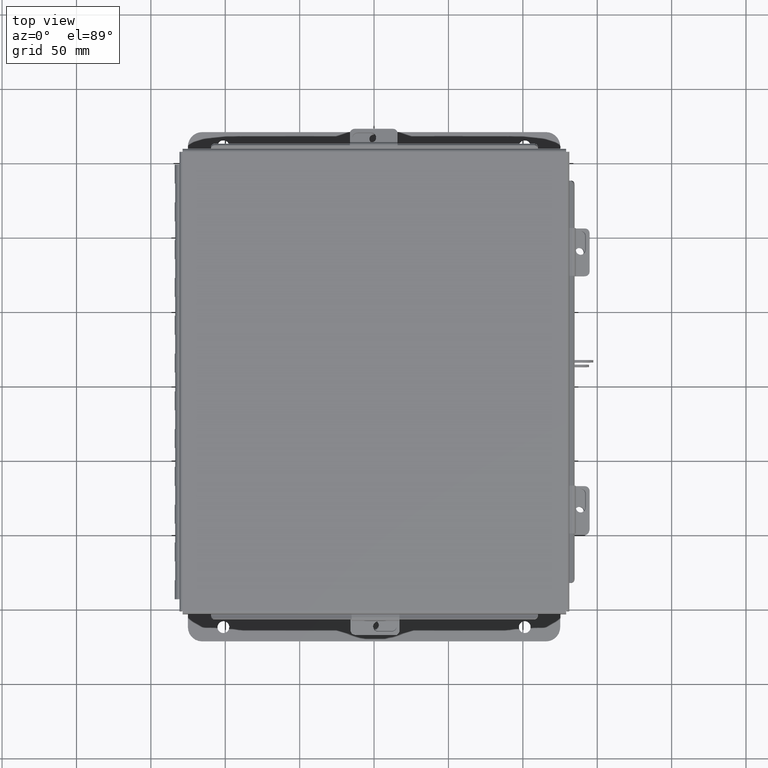
[diagram: clean part render]
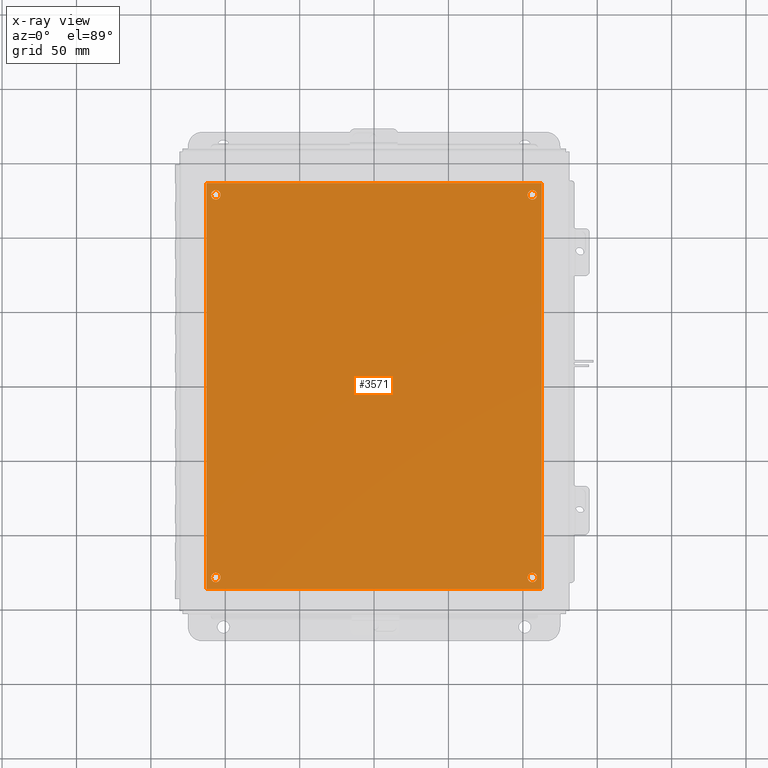
[diagram: x-ray — body ghosted, one internal face saturated and labeled with its STEP entity id]
A machine part, top view, then the same camera in x-ray: the body is ghosted and one INTERNAL B-rep face — a face not visible from any outside direction — is saturated and labeled: STEP entity #3571.
In plain terms, the highlighted planar face has unit normal (0, 0, -1).
Its self-contained STEP definition (entity closure, byte-faithful):
#255 = CARTESIAN_POINT ( 'NONE',  ( 0.0000000000000000000, 0.0000000000000000000, -0.07470000000000003000 ) ) ;
#257 = AXIS2_PLACEMENT_3D ( 'NONE', #13267, #10699, #8166 ) ;
#391 = CARTESIAN_POINT ( 'NONE',  ( 0.3749999999999998300, 10.43799999999999900, -0.07470000000000003000 ) ) ;
#619 = DIRECTION ( 'NONE',  ( -1.000000000000000000, 0.0000000000000000000, -0.0000000000000000000 ) ) ;
#928 = ORIENTED_EDGE ( 'NONE', *, *, #6595, .T. ) ;
#1158 = DIRECTION ( 'NONE',  ( -0.0000000000000000000, -1.000000000000000000, -0.0000000000000000000 ) ) ;
#1732 = VERTEX_POINT ( 'NONE', #14756 ) ;
#1788 = EDGE_CURVE ( 'NONE', #14668, #16118, #2893, .T. ) ;
#1884 = ORIENTED_EDGE ( 'NONE', *, *, #1788, .T. ) ;
#1937 = VERTEX_POINT ( 'NONE', #12248 ) ;
#1981 = CARTESIAN_POINT ( 'NONE',  ( 8.625000000000000000, 10.43799999999999900, -0.07470000000000003000 ) ) ;
#1984 = VECTOR ( 'NONE', #6371, 39.37007874015748100 ) ;
#2075 = DIRECTION ( 'NONE',  ( -0.0000000000000000000, -0.0000000000000000000, 1.000000000000000000 ) ) ;
#2090 = CARTESIAN_POINT ( 'NONE',  ( 0.3750000000000020000, 0.3120000000000015000, -0.07470000000000003000 ) ) ;
#2154 = CIRCLE ( 'NONE', #16639, 0.1250000000000004400 ) ;
#2182 = DIRECTION ( 'NONE',  ( 1.000000000000000000, 0.0000000000000000000, 0.0000000000000000000 ) ) ;
#2587 = ORIENTED_EDGE ( 'NONE', *, *, #5537, .T. ) ;
#2614 = VERTEX_POINT ( 'NONE', #8957 ) ;
#2845 = ORIENTED_EDGE ( 'NONE', *, *, #8380, .T. ) ;
#2893 = CIRCLE ( 'NONE', #7512, 0.1250000000000000600 ) ;
#2960 = EDGE_CURVE ( 'NONE', #16834, #1937, #5635, .T. ) ;
#3043 = AXIS2_PLACEMENT_3D ( 'NONE', #15840, #7683, #17211 ) ;
#3109 = CARTESIAN_POINT ( 'NONE',  ( 0.0000000000000000000, 0.0000000000000000000, -0.07470000000000003000 ) ) ;
#3155 = CARTESIAN_POINT ( 'NONE',  ( 0.0000000000000000000, 0.0000000000000000000, -0.07470000000000003000 ) ) ;
#3447 = FACE_BOUND ( 'NONE', #9397, .T. ) ;
#3519 = ORIENTED_EDGE ( 'NONE', *, *, #3618, .T. ) ;
#3571 = ADVANCED_FACE ( 'NONE', ( #14305, #3447, #14742, #7486, #17532 ), #9511, .T. ) ;
#3618 = EDGE_CURVE ( 'NONE', #1732, #17057, #9845, .T. ) ;
#3674 = CARTESIAN_POINT ( 'NONE',  ( 0.2499999999999998100, 10.43799999999999900, -0.07470000000000003000 ) ) ;
#3744 = DIRECTION ( 'NONE',  ( -0.0000000000000000000, -0.0000000000000000000, 1.000000000000000000 ) ) ;
#4056 = ORIENTED_EDGE ( 'NONE', *, *, #4977, .F. ) ;
#4065 = CARTESIAN_POINT ( 'NONE',  ( 8.750000000000000000, 10.43799999999999900, -0.07470000000000003000 ) ) ;
#4205 = EDGE_CURVE ( 'NONE', #17057, #1732, #13442, .T. ) ;
#4299 = CARTESIAN_POINT ( 'NONE',  ( 0.0000000000000000000, 10.75000000000000200, -0.07470000000000003000 ) ) ;
#4387 = DIRECTION ( 'NONE',  ( -1.000000000000000000, 0.0000000000000000000, 0.0000000000000000000 ) ) ;
#4404 = VERTEX_POINT ( 'NONE', #9048 ) ;
#4671 = EDGE_CURVE ( 'NONE', #1937, #6094, #10221, .T. ) ;
#4916 = DIRECTION ( 'NONE',  ( 0.0000000000000000000, 1.000000000000000000, 0.0000000000000000000 ) ) ;
#4977 = EDGE_CURVE ( 'NONE', #4404, #16834, #16841, .T. ) ;
#5025 = CARTESIAN_POINT ( 'NONE',  ( 0.1250000000000019200, 0.3120000000000015000, -0.07470000000000003000 ) ) ;
#5184 = EDGE_CURVE ( 'NONE', #2614, #7881, #14245, .T. ) ;
#5537 = EDGE_CURVE ( 'NONE', #16118, #14668, #5946, .T. ) ;
#5543 = DIRECTION ( 'NONE',  ( -1.000000000000000000, 0.0000000000000000000, 0.0000000000000000000 ) ) ;
#5560 = EDGE_LOOP ( 'NONE', ( #8928, #3519 ) ) ;
#5635 = LINE ( 'NONE', #4299, #1984 ) ;
#5771 = DIRECTION ( 'NONE',  ( -0.0000000000000000000, -0.0000000000000000000, 1.000000000000000000 ) ) ;
#5848 = CARTESIAN_POINT ( 'NONE',  ( 0.2499999999999998100, 10.43799999999999900, -0.07470000000000003000 ) ) ;
#5946 = CIRCLE ( 'NONE', #257, 0.1250000000000000600 ) ;
#6094 = VERTEX_POINT ( 'NONE', #3109 ) ;
#6371 = DIRECTION ( 'NONE',  ( -1.000000000000000000, -0.0000000000000000000, -0.0000000000000000000 ) ) ;
#6468 = CARTESIAN_POINT ( 'NONE',  ( 8.500000000000000000, 10.43799999999999900, -0.07470000000000003000 ) ) ;
#6510 = EDGE_CURVE ( 'NONE', #6094, #4404, #10245, .T. ) ;
#6595 = EDGE_CURVE ( 'NONE', #13315, #9513, #2154, .T. ) ;
#6601 = DIRECTION ( 'NONE',  ( 0.0000000000000000000, 0.0000000000000000000, -1.000000000000000000 ) ) ;
#6610 = VECTOR ( 'NONE', #1158, 39.37007874015748100 ) ;
#7486 = FACE_BOUND ( 'NONE', #5560, .T. ) ;
#7512 = AXIS2_PLACEMENT_3D ( 'NONE', #12940, #13023, #5543 ) ;
#7683 = DIRECTION ( 'NONE',  ( -0.0000000000000000000, -0.0000000000000000000, 1.000000000000000000 ) ) ;
#7881 = VERTEX_POINT ( 'NONE', #15176 ) ;
#8044 = CIRCLE ( 'NONE', #3043, 0.1250000000000004400 ) ;
#8166 = DIRECTION ( 'NONE',  ( -1.000000000000000000, 0.0000000000000000000, 0.0000000000000000000 ) ) ;
#8314 = CARTESIAN_POINT ( 'NONE',  ( 8.625000000000001800, 0.3120000000000036600, -0.07470000000000003000 ) ) ;
#8315 = CARTESIAN_POINT ( 'NONE',  ( 8.875000000000000000, 0.0000000000000000000, -0.07470000000000003000 ) ) ;
#8380 = EDGE_CURVE ( 'NONE', #9513, #13315, #9594, .T. ) ;
#8928 = ORIENTED_EDGE ( 'NONE', *, *, #4205, .T. ) ;
#8957 = CARTESIAN_POINT ( 'NONE',  ( 8.750000000000001800, 0.3120000000000036600, -0.07470000000000003000 ) ) ;
#9048 = CARTESIAN_POINT ( 'NONE',  ( 8.875000000000000000, 0.0000000000000000000, -0.07470000000000003000 ) ) ;
#9397 = EDGE_LOOP ( 'NONE', ( #10545, #15470 ) ) ;
#9511 = PLANE ( 'NONE',  #12780 ) ;
#9513 = VERTEX_POINT ( 'NONE', #4065 ) ;
#9594 = CIRCLE ( 'NONE', #16431, 0.1250000000000004400 ) ;
#9845 = CIRCLE ( 'NONE', #13720, 0.1250000000000000000 ) ;
#9976 = ORIENTED_EDGE ( 'NONE', *, *, #2960, .F. ) ;
#10077 = DIRECTION ( 'NONE',  ( -1.000000000000000000, 0.0000000000000000000, 0.0000000000000000000 ) ) ;
#10221 = LINE ( 'NONE', #15745, #6610 ) ;
#10245 = LINE ( 'NONE', #3155, #14288 ) ;
#10545 = ORIENTED_EDGE ( 'NONE', *, *, #5184, .T. ) ;
#10593 = ORIENTED_EDGE ( 'NONE', *, *, #6510, .F. ) ;
#10609 = EDGE_LOOP ( 'NONE', ( #2845, #928 ) ) ;
#10699 = DIRECTION ( 'NONE',  ( -0.0000000000000000000, -0.0000000000000000000, 1.000000000000000000 ) ) ;
#10904 = EDGE_LOOP ( 'NONE', ( #12080, #9976, #4056, #10593 ) ) ;
#11810 = DIRECTION ( 'NONE',  ( -1.000000000000000000, 0.0000000000000000000, 0.0000000000000000000 ) ) ;
#11905 = CARTESIAN_POINT ( 'NONE',  ( 8.625000000000000000, 10.43799999999999900, -0.07470000000000003000 ) ) ;
#12080 = ORIENTED_EDGE ( 'NONE', *, *, #4671, .F. ) ;
#12248 = CARTESIAN_POINT ( 'NONE',  ( 0.0000000000000000000, 10.75000000000000200, -0.07470000000000003000 ) ) ;
#12780 = AXIS2_PLACEMENT_3D ( 'NONE', #255, #6601, #619 ) ;
#12809 = DIRECTION ( 'NONE',  ( -1.000000000000000000, 0.0000000000000000000, 0.0000000000000000000 ) ) ;
#12940 = CARTESIAN_POINT ( 'NONE',  ( 0.2500000000000020000, 0.3120000000000015000, -0.07470000000000003000 ) ) ;
#13023 = DIRECTION ( 'NONE',  ( -0.0000000000000000000, -0.0000000000000000000, 1.000000000000000000 ) ) ;
#13267 = CARTESIAN_POINT ( 'NONE',  ( 0.2500000000000020000, 0.3120000000000015000, -0.07470000000000003000 ) ) ;
#13282 = DIRECTION ( 'NONE',  ( -1.000000000000000000, 0.0000000000000000000, 0.0000000000000000000 ) ) ;
#13315 = VERTEX_POINT ( 'NONE', #6468 ) ;
#13442 = CIRCLE ( 'NONE', #13952, 0.1250000000000000000 ) ;
#13720 = AXIS2_PLACEMENT_3D ( 'NONE', #3674, #14442, #4387 ) ;
#13952 = AXIS2_PLACEMENT_3D ( 'NONE', #5848, #15207, #11810 ) ;
#13989 = EDGE_CURVE ( 'NONE', #7881, #2614, #8044, .T. ) ;
#14245 = CIRCLE ( 'NONE', #15558, 0.1250000000000004400 ) ;
#14288 = VECTOR ( 'NONE', #2182, 39.37007874015748100 ) ;
#14305 = FACE_BOUND ( 'NONE', #15541, .T. ) ;
#14442 = DIRECTION ( 'NONE',  ( -0.0000000000000000000, -0.0000000000000000000, 1.000000000000000000 ) ) ;
#14468 = VECTOR ( 'NONE', #4916, 39.37007874015748100 ) ;
#14668 = VERTEX_POINT ( 'NONE', #5025 ) ;
#14742 = FACE_BOUND ( 'NONE', #10609, .T. ) ;
#14756 = CARTESIAN_POINT ( 'NONE',  ( 0.1249999999999997900, 10.43799999999999900, -0.07470000000000003000 ) ) ;
#15176 = CARTESIAN_POINT ( 'NONE',  ( 8.500000000000001800, 0.3120000000000036600, -0.07470000000000003000 ) ) ;
#15207 = DIRECTION ( 'NONE',  ( -0.0000000000000000000, -0.0000000000000000000, 1.000000000000000000 ) ) ;
#15470 = ORIENTED_EDGE ( 'NONE', *, *, #13989, .T. ) ;
#15541 = EDGE_LOOP ( 'NONE', ( #2587, #1884 ) ) ;
#15558 = AXIS2_PLACEMENT_3D ( 'NONE', #8314, #5771, #12809 ) ;
#15745 = CARTESIAN_POINT ( 'NONE',  ( 0.0000000000000000000, 0.0000000000000000000, -0.07470000000000003000 ) ) ;
#15840 = CARTESIAN_POINT ( 'NONE',  ( 8.625000000000001800, 0.3120000000000036600, -0.07470000000000003000 ) ) ;
#16118 = VERTEX_POINT ( 'NONE', #2090 ) ;
#16407 = CARTESIAN_POINT ( 'NONE',  ( 8.875000000000000000, 10.75000000000000200, -0.07470000000000003000 ) ) ;
#16431 = AXIS2_PLACEMENT_3D ( 'NONE', #11905, #3744, #13282 ) ;
#16639 = AXIS2_PLACEMENT_3D ( 'NONE', #1981, #2075, #10077 ) ;
#16834 = VERTEX_POINT ( 'NONE', #16407 ) ;
#16841 = LINE ( 'NONE', #8315, #14468 ) ;
#17057 = VERTEX_POINT ( 'NONE', #391 ) ;
#17211 = DIRECTION ( 'NONE',  ( -1.000000000000000000, 0.0000000000000000000, 0.0000000000000000000 ) ) ;
#17532 = FACE_OUTER_BOUND ( 'NONE', #10904, .T. ) ;